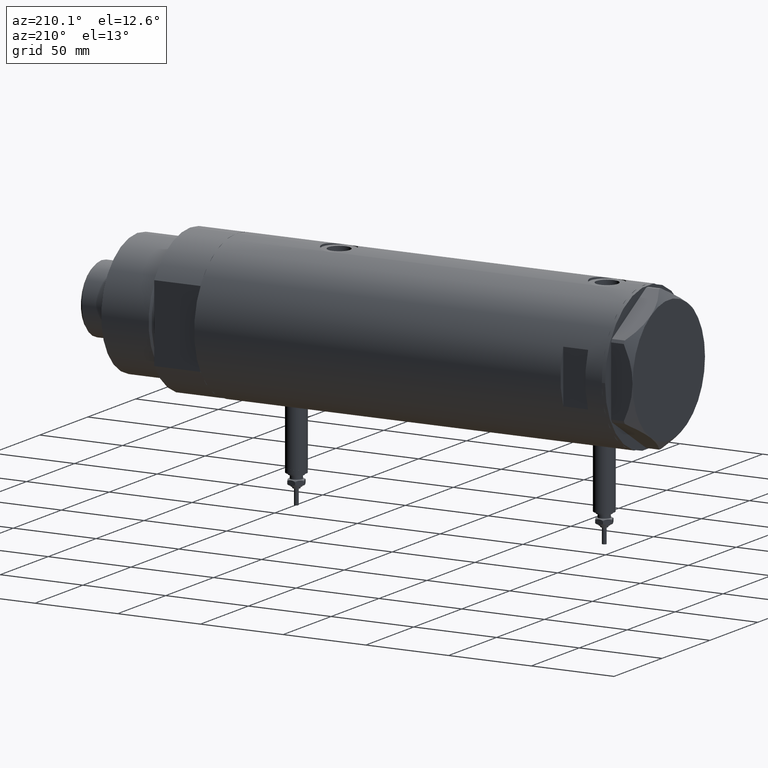
[diagram: clean part render]
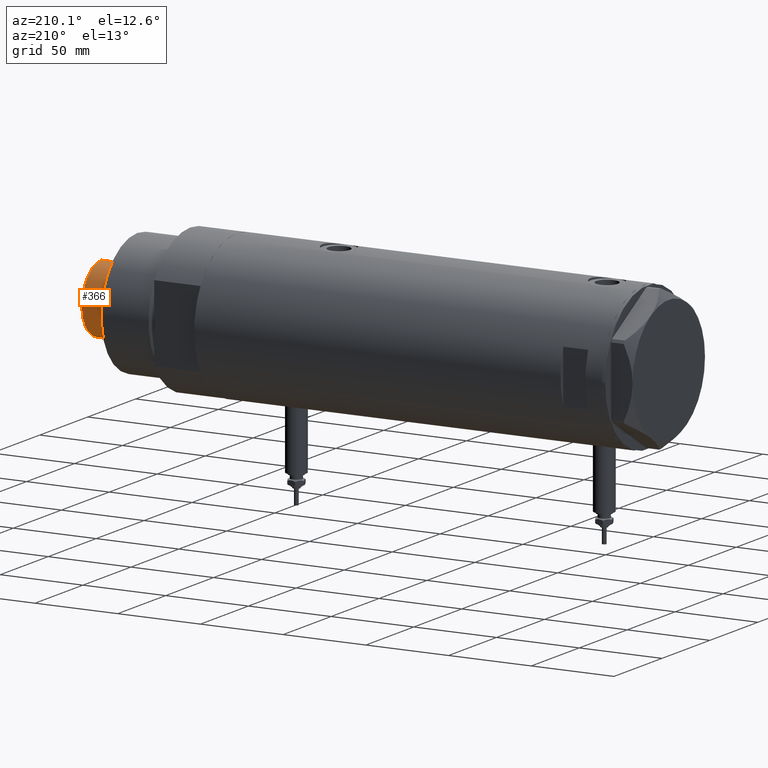
[diagram: same view with one face highlighted and labeled with its STEP entity id]
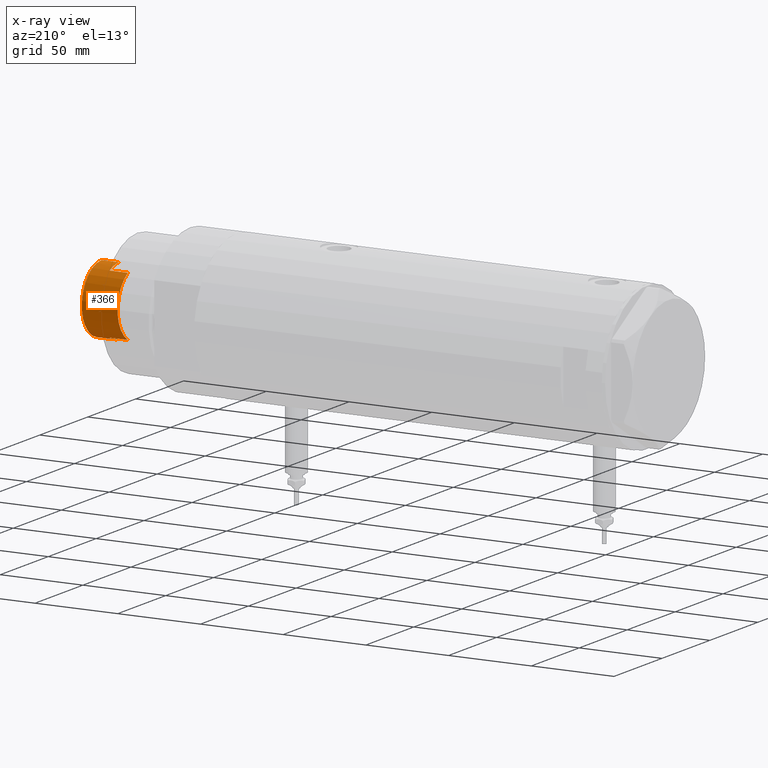
[diagram: x-ray of the same camera — body ghosted, the highlighted face saturated]
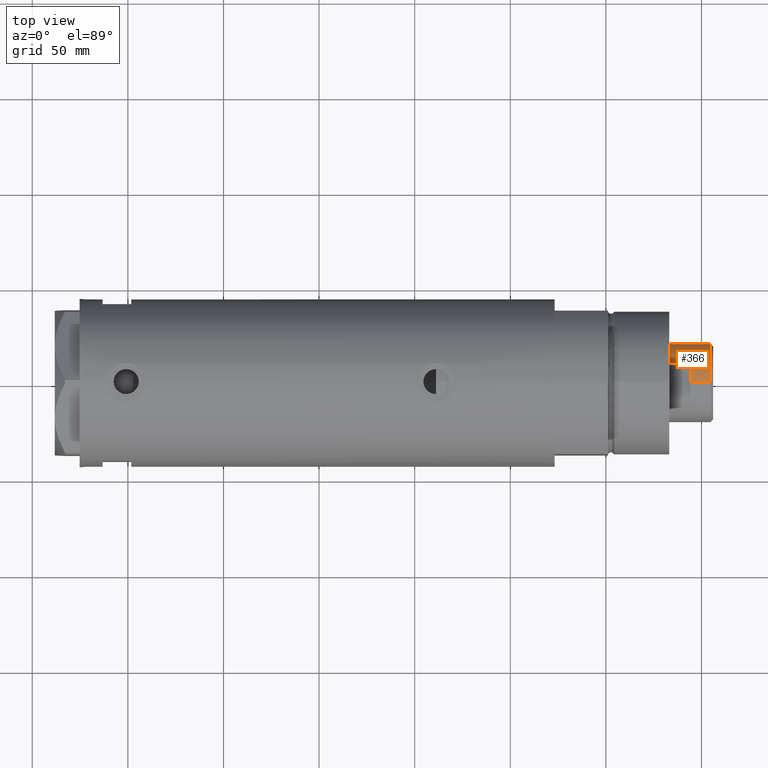
[diagram: same view with one face highlighted and labeled with its STEP entity id]
A machine part, auxiliary view. The second image highlights one B-rep face of the part: STEP entity #366.
The next image is the same camera in x-ray: the body ghosted, the highlighted face saturated — about 0% of this face is hidden behind the body in this view.
A second angle (top view) of the same face is appended — the face is thin or edge-on in the first view.
In plain terms, the highlighted cylindrical surface (partial cylindrical patch) has radius 20.5 mm, axis along (-1, -0, 0).
Its self-contained STEP definition (entity closure, byte-faithful):
#75 = DIRECTION ( 'NONE',  ( 0.000000000000000000, 0.000000000000000000, 1.000000000000000000 ) ) ;
#197 = EDGE_CURVE ( 'NONE', #2106, #2191, #5236, .T. ) ;
#366 = ADVANCED_FACE ( 'NONE', ( #1136 ), #4839, .T. ) ;
#381 = VECTOR ( 'NONE', #4713, 1000.000000000000000 ) ;
#522 = VERTEX_POINT ( 'NONE', #1747 ) ;
#523 = LINE ( 'NONE', #1917, #381 ) ;
#607 = CARTESIAN_POINT ( 'NONE',  ( 17.97852886083842705, 9.849999999999997868, 291.3000000000000114 ) ) ;
#614 = AXIS2_PLACEMENT_3D ( 'NONE', #5639, #75, #4265 ) ;
#657 = ORIENTED_EDGE ( 'NONE', *, *, #4225, .T. ) ;
#717 = DIRECTION ( 'NONE',  ( -1.000000000000000000, 0.000000000000000000, 0.000000000000000000 ) ) ;
#826 = EDGE_CURVE ( 'NONE', #5225, #2106, #5231, .T. ) ;
#878 = CARTESIAN_POINT ( 'NONE',  ( 17.97852886083842705, 9.849999999999997868, 280.3000000000000114 ) ) ;
#990 = CIRCLE ( 'NONE', #614, 20.50000000000000000 ) ;
#1136 = FACE_OUTER_BOUND ( 'NONE', #5751, .T. ) ;
#1177 = CARTESIAN_POINT ( 'NONE',  ( 17.97852886083842705, 9.849999999999997868, 291.3000000000000114 ) ) ;
#1276 = AXIS2_PLACEMENT_3D ( 'NONE', #4012, #3554, #4509 ) ;
#1449 = VERTEX_POINT ( 'NONE', #2442 ) ;
#1508 = DIRECTION ( 'NONE',  ( 0.000000000000000000, 0.000000000000000000, 1.000000000000000000 ) ) ;
#1617 = LINE ( 'NONE', #5379, #3955 ) ;
#1627 = CARTESIAN_POINT ( 'NONE',  ( 0.000000000000000000, 0.000000000000000000, 291.3000000000000114 ) ) ;
#1722 = EDGE_CURVE ( 'NONE', #1449, #522, #523, .T. ) ;
#1742 = AXIS2_PLACEMENT_3D ( 'NONE', #1627, #2954, #717 ) ;
#1747 = CARTESIAN_POINT ( 'NONE',  ( -17.97852886083843060, 9.850000000000246558, 280.3000000000000114 ) ) ;
#1859 = EDGE_CURVE ( 'NONE', #4182, #5203, #1617, .T. ) ;
#1899 = DIRECTION ( 'NONE',  ( 1.000000000000000000, 0.000000000000000000, 0.000000000000000000 ) ) ;
#1917 = CARTESIAN_POINT ( 'NONE',  ( -17.97852886083842705, 9.849999999999997868, 291.3000000000000114 ) ) ;
#2106 = VERTEX_POINT ( 'NONE', #5160 ) ;
#2166 = CARTESIAN_POINT ( 'NONE',  ( 20.50000000000000355, 2.510525938252074481E-15, 291.3000000000000114 ) ) ;
#2191 = VERTEX_POINT ( 'NONE', #1177 ) ;
#2324 = DIRECTION ( 'NONE',  ( -0.000000000000000000, -0.000000000000000000, -1.000000000000000000 ) ) ;
#2349 = CARTESIAN_POINT ( 'NONE',  ( 0.000000000000000000, 0.000000000000000000, 291.3000000000000114 ) ) ;
#2442 = CARTESIAN_POINT ( 'NONE',  ( -17.97852886083842705, 9.849999999999997868, 291.3000000000000114 ) ) ;
#2716 = CIRCLE ( 'NONE', #1276, 20.50000000000000355 ) ;
#2829 = AXIS2_PLACEMENT_3D ( 'NONE', #2887, #4323, #3275 ) ;
#2887 = CARTESIAN_POINT ( 'NONE',  ( 0.000000000000000000, 0.000000000000000000, 280.3000000000000114 ) ) ;
#2954 = DIRECTION ( 'NONE',  ( -0.000000000000000000, -0.000000000000000000, -1.000000000000000000 ) ) ;
#3003 = EDGE_CURVE ( 'NONE', #2191, #3406, #4307, .T. ) ;
#3009 = CARTESIAN_POINT ( 'NONE',  ( -20.50000000000000355, 0.000000000000000000, 301.8999999999999773 ) ) ;
#3084 = AXIS2_PLACEMENT_3D ( 'NONE', #2349, #1508, #1899 ) ;
#3273 = ORIENTED_EDGE ( 'NONE', *, *, #197, .T. ) ;
#3275 = DIRECTION ( 'NONE',  ( 1.000000000000000000, 0.000000000000000000, 0.000000000000000000 ) ) ;
#3319 = CARTESIAN_POINT ( 'NONE',  ( -20.50000000000000000, 0.000000000000000000, 291.3000000000000114 ) ) ;
#3406 = VERTEX_POINT ( 'NONE', #878 ) ;
#3554 = DIRECTION ( 'NONE',  ( 0.000000000000000000, 0.000000000000000000, -1.000000000000000000 ) ) ;
#3633 = DIRECTION ( 'NONE',  ( -0.000000000000000000, -0.000000000000000000, -1.000000000000000000 ) ) ;
#3649 = ORIENTED_EDGE ( 'NONE', *, *, #5165, .T. ) ;
#3955 = VECTOR ( 'NONE', #5346, 1000.000000000000000 ) ;
#4012 = CARTESIAN_POINT ( 'NONE',  ( 0.000000000000000000, 0.000000000000000000, 301.8999999999999773 ) ) ;
#4041 = ORIENTED_EDGE ( 'NONE', *, *, #1859, .F. ) ;
#4047 = ORIENTED_EDGE ( 'NONE', *, *, #1722, .F. ) ;
#4132 = VECTOR ( 'NONE', #3633, 1000.000000000000000 ) ;
#4182 = VERTEX_POINT ( 'NONE', #3009 ) ;
#4225 = EDGE_CURVE ( 'NONE', #4182, #5225, #2716, .T. ) ;
#4262 = VECTOR ( 'NONE', #2324, 1000.000000000000000 ) ;
#4265 = DIRECTION ( 'NONE',  ( 1.000000000000000000, 0.000000000000000000, 0.000000000000000000 ) ) ;
#4307 = LINE ( 'NONE', #607, #4262 ) ;
#4323 = DIRECTION ( 'NONE',  ( 0.000000000000000000, 0.000000000000000000, 1.000000000000000000 ) ) ;
#4509 = DIRECTION ( 'NONE',  ( 1.000000000000000000, 0.000000000000000000, 0.000000000000000000 ) ) ;
#4713 = DIRECTION ( 'NONE',  ( -0.000000000000000000, -0.000000000000000000, -1.000000000000000000 ) ) ;
#4839 = CYLINDRICAL_SURFACE ( 'NONE', #1742, 20.50000000000000355 ) ;
#4877 = CIRCLE ( 'NONE', #2829, 20.50000000000012434 ) ;
#5160 = CARTESIAN_POINT ( 'NONE',  ( 20.50000000000000000, 2.510525938252074481E-15, 291.3000000000000114 ) ) ;
#5165 = EDGE_CURVE ( 'NONE', #1449, #5203, #990, .T. ) ;
#5184 = CARTESIAN_POINT ( 'NONE',  ( 20.50000000000000355, 2.510525938252074481E-15, 301.8999999999999773 ) ) ;
#5203 = VERTEX_POINT ( 'NONE', #3319 ) ;
#5225 = VERTEX_POINT ( 'NONE', #5184 ) ;
#5231 = LINE ( 'NONE', #2166, #4132 ) ;
#5236 = CIRCLE ( 'NONE', #3084, 20.50000000000000000 ) ;
#5346 = DIRECTION ( 'NONE',  ( -0.000000000000000000, -0.000000000000000000, -1.000000000000000000 ) ) ;
#5379 = CARTESIAN_POINT ( 'NONE',  ( -20.50000000000000355, 0.000000000000000000, 291.3000000000000114 ) ) ;
#5543 = EDGE_CURVE ( 'NONE', #3406, #522, #4877, .T. ) ;
#5564 = ORIENTED_EDGE ( 'NONE', *, *, #5543, .T. ) ;
#5639 = CARTESIAN_POINT ( 'NONE',  ( 0.000000000000000000, 0.000000000000000000, 291.3000000000000114 ) ) ;
#5751 = EDGE_LOOP ( 'NONE', ( #657, #5998, #3273, #5916, #5564, #4047, #3649, #4041 ) ) ;
#5916 = ORIENTED_EDGE ( 'NONE', *, *, #3003, .T. ) ;
#5998 = ORIENTED_EDGE ( 'NONE', *, *, #826, .T. ) ;